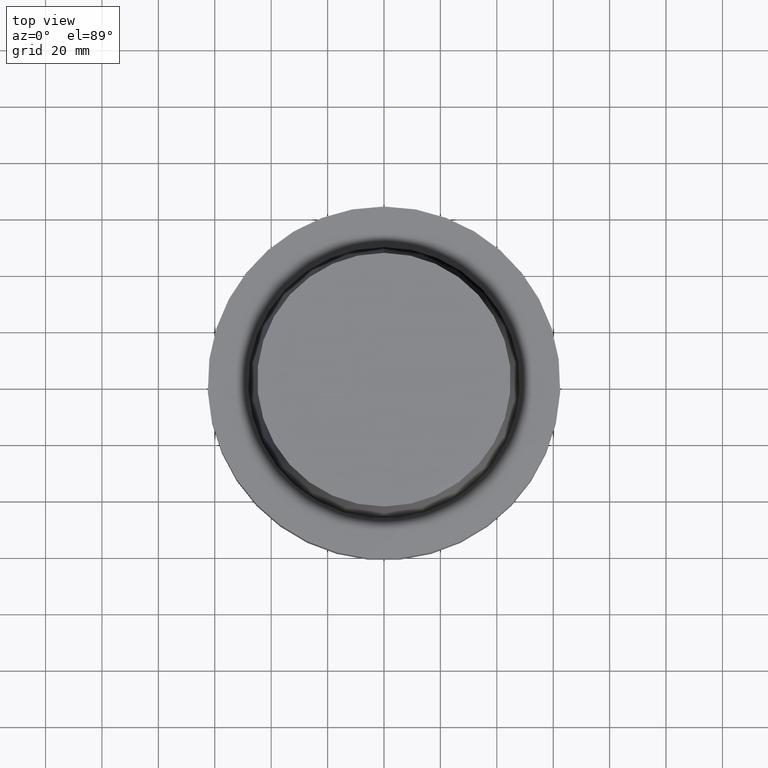
[diagram: clean part render]
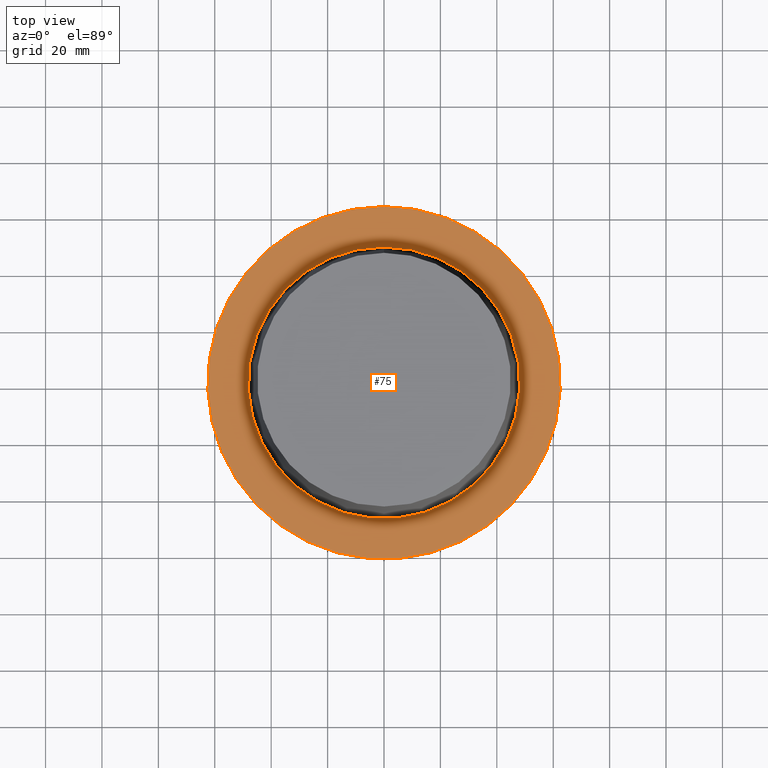
[diagram: same view with one face highlighted and labeled with its STEP entity id]
A machine part, top view. The second image highlights one B-rep face of the part: STEP entity #75.
In plain terms, the highlighted planar face has unit normal (-0, -0, 1).
Its self-contained STEP definition (entity closure, byte-faithful):
#75=ADVANCED_FACE('Unnamed[1]',(#187,#188),#189,.T.);
#87=EDGE_CURVE('Unnamed[1]',#207,#207,#208,.T.);
#137=EDGE_CURVE('Unnamed[1]',#283,#283,#284,.T.);
#187=FACE_OUTER_BOUND('',#334,.T.);
#188=FACE_BOUND('',#335,.T.);
#189=PLANE('',#336);
#207=VERTEX_POINT('',#359);
#208=CIRCLE('',#360,48.1342525050097);
#283=VERTEX_POINT('',#454);
#284=CIRCLE('',#455,62.5000000000002);
#334=EDGE_LOOP('',(#498));
#335=EDGE_LOOP('',(#499));
#336=AXIS2_PLACEMENT_3D('',#500,#501,#502);
#359=CARTESIAN_POINT('',(3.88342032297484E-029,48.1342525050097,-6.38005254174039E-013));
#360=AXIS2_PLACEMENT_3D('',#521,#522,#523);
#454=CARTESIAN_POINT('',(-5.58935713239973E-030,62.5000000000002,8.63540424946709E-014));
#455=AXIS2_PLACEMENT_3D('',#604,#605,#606);
#498=ORIENTED_EDGE('',*,*,#137,.F.);
#499=ORIENTED_EDGE('',*,*,#87,.T.);
#500=CARTESIAN_POINT('',(1.66224230486744E-029,55.317126252505,-2.75825605839684E-013));
#501=DIRECTION('',(-6.12323399573677E-017,-5.04226666187264E-014,1.0));
#502=DIRECTION('',(3.09232501668564E-030,-1.0,-5.04226666187264E-014));
#521=CARTESIAN_POINT('',(3.91573749152705E-029,7.83147498305409E-029,-6.3948846218409E-013));
#522=DIRECTION('',(6.12323399573677E-017,1.22464679914735E-016,-1.0));
#523=DIRECTION('',(-1.23259516440783E-032,1.0,1.22464679914735E-016));
#604=CARTESIAN_POINT('',(-5.22098332203606E-030,-1.04419666440721E-029,8.5265128291212E-014));
#605=DIRECTION('',(6.12323399573677E-017,1.22464679914735E-016,-1.0));
#606=DIRECTION('',(-1.23259516440783E-032,1.0,1.22464679914735E-016));